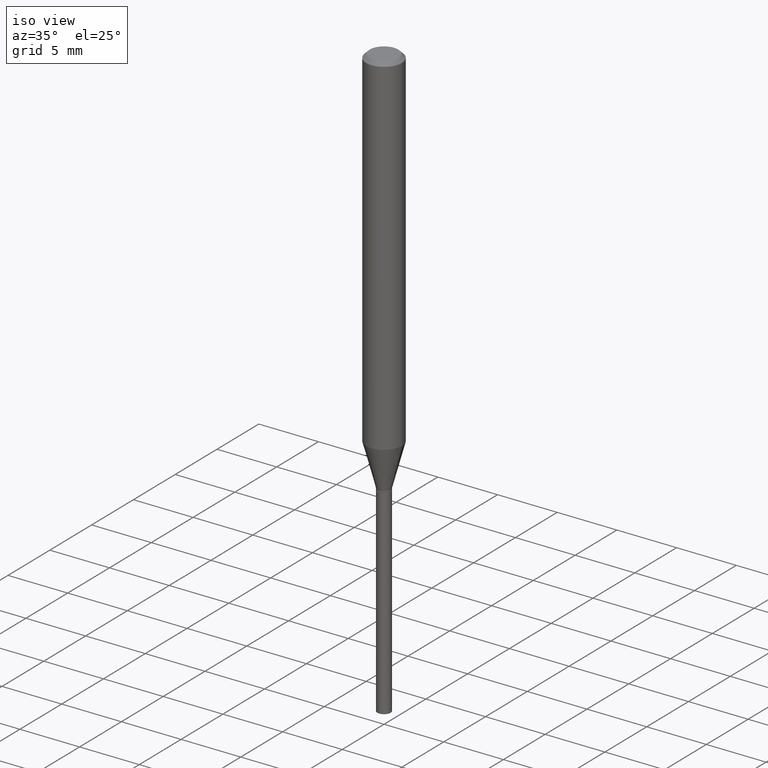
[diagram: clean part render]
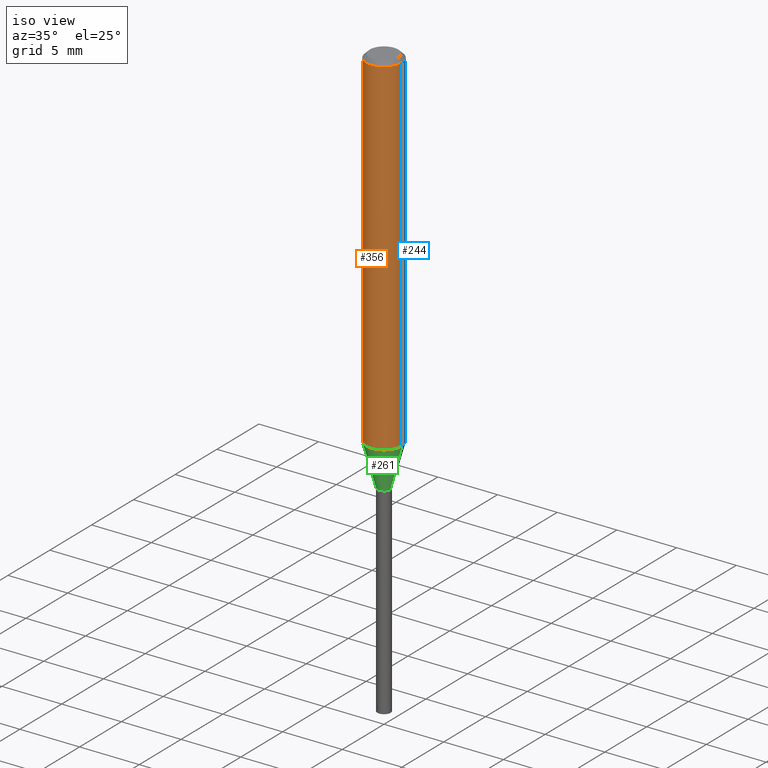
[diagram: same view with three faces highlighted in distinct colors, each labeled with its STEP entity id]
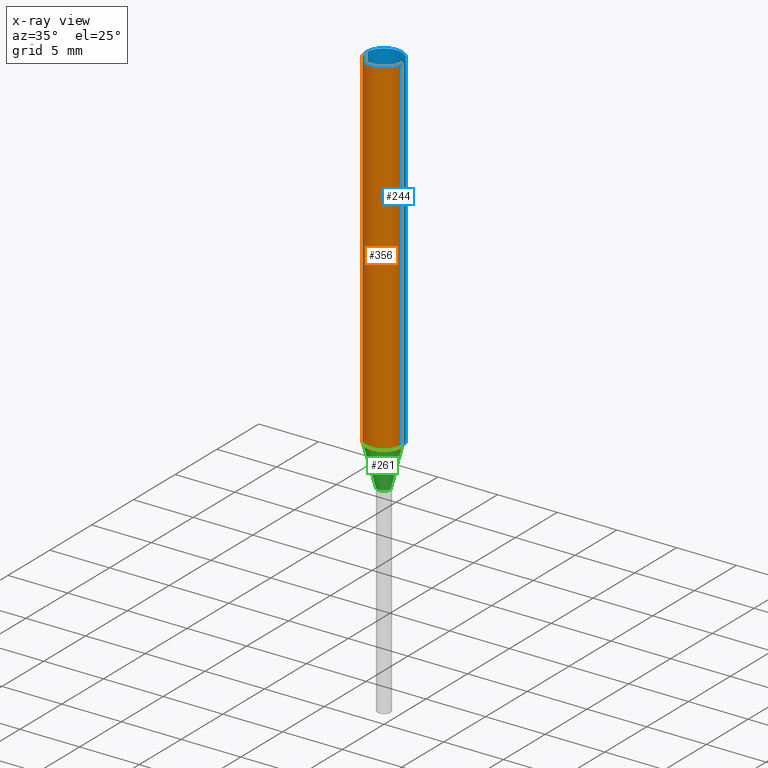
[diagram: x-ray of the same camera — body ghosted, the three highlighted faces saturated]
A machine part, iso view with three faces highlighted in distinct colors.
The next image is the same camera in x-ray (body ghosted, the three faces saturated) — at least one of them is partly hidden behind the body in this view.
Their STEP definitions:

[orange] entity #356 — the highlighted cylindrical surface (edge-blend (fillet) strip) has radius 1.4999 mm, axis along (-0, 0, 1).
#29 = CYLINDRICAL_SURFACE ( 'NONE', #385, 0.05905000000000008159 ) ;
#61 = CARTESIAN_POINT ( 'NONE',  ( 2.821144902804128605E-29, -4.027847240332933093E-15, -1.153621299796923516 ) ) ;
#70 = FACE_OUTER_BOUND ( 'NONE', #343, .T. ) ;
#87 = DIRECTION ( 'NONE',  ( -2.445468806185136597E-29, 3.491481338843145583E-15, 1.000000000000000000 ) ) ;
#94 = AXIS2_PLACEMENT_3D ( 'NONE', #61, #472, #101 ) ;
#98 = CARTESIAN_POINT ( 'NONE',  ( 0.05905000000000008159, -4.123439461173746736E-16, 2.879382386107504424E-30 ) ) ;
#101 = DIRECTION ( 'NONE',  ( 1.000000000000000000, -6.982962677686271444E-15, 0.000000000000000000 ) ) ;
#154 = AXIS2_PLACEMENT_3D ( 'NONE', #272, #87, #236 ) ;
#156 = VERTEX_POINT ( 'NONE', #201 ) ;
#184 = VECTOR ( 'NONE', #404, 39.37007874015748143 ) ;
#197 = ORIENTED_EDGE ( 'NONE', *, *, #279, .T. ) ;
#201 = CARTESIAN_POINT ( 'NONE',  ( 0.05905000000000000526, -4.535783407291119586E-16, -0.01181000000000007565 ) ) ;
#211 = EDGE_CURVE ( 'NONE', #267, #419, #387, .T. ) ;
#236 = DIRECTION ( 'NONE',  ( 1.000000000000000000, -6.982962677686268288E-15, 0.000000000000000000 ) ) ;
#248 = DIRECTION ( 'NONE',  ( 1.000000000000000000, -6.982962677686267499E-15, 4.876176775795936353E-29 ) ) ;
#257 = VECTOR ( 'NONE', #463, 39.37007874015748143 ) ;
#267 = VERTEX_POINT ( 'NONE', #439 ) ;
#272 = CARTESIAN_POINT ( 'NONE',  ( 2.888098660104664642E-31, -4.123439461173780879E-17, -0.01181000000000007565 ) ) ;
#279 = EDGE_CURVE ( 'NONE', #267, #370, #306, .T. ) ;
#282 = CARTESIAN_POINT ( 'NONE',  ( 0.05905000000000015098, -4.440191186450307224E-15, -1.153621299796923516 ) ) ;
#285 = CARTESIAN_POINT ( 'NONE',  ( 0.000000000000000000, 0.000000000000000000, 0.000000000000000000 ) ) ;
#304 = EDGE_CURVE ( 'NONE', #370, #156, #398, .T. ) ;
#306 = CIRCLE ( 'NONE', #94, 0.05905000000000015098 ) ;
#307 = ORIENTED_EDGE ( 'NONE', *, *, #304, .T. ) ;
#309 = ORIENTED_EDGE ( 'NONE', *, *, #401, .F. ) ;
#333 = ORIENTED_EDGE ( 'NONE', *, *, #211, .F. ) ;
#343 = EDGE_LOOP ( 'NONE', ( #333, #197, #307, #309 ) ) ;
#356 = ADVANCED_FACE ( 'NONE', ( #70 ), #29, .T. ) ;
#359 = CARTESIAN_POINT ( 'NONE',  ( -0.05905000000000000526, -1.614965332005994340E-15, -0.01181000000000007565 ) ) ;
#369 = CIRCLE ( 'NONE', #154, 0.05905000000000000526 ) ;
#370 = VERTEX_POINT ( 'NONE', #282 ) ;
#385 = AXIS2_PLACEMENT_3D ( 'NONE', #285, #435, #248 ) ;
#387 = LINE ( 'NONE', #420, #257 ) ;
#398 = LINE ( 'NONE', #98, #184 ) ;
#401 = EDGE_CURVE ( 'NONE', #419, #156, #369, .T. ) ;
#404 = DIRECTION ( 'NONE',  ( -2.445468806185136877E-29, 3.491481338843145188E-15, 1.000000000000000000 ) ) ;
#419 = VERTEX_POINT ( 'NONE', #359 ) ;
#420 = CARTESIAN_POINT ( 'NONE',  ( -0.05905000000000008159, 4.195754854663397395E-16, -2.904631170795525745E-30 ) ) ;
#435 = DIRECTION ( 'NONE',  ( -2.445468806185136597E-29, 3.491481338843145583E-15, 1.000000000000000000 ) ) ;
#439 = CARTESIAN_POINT ( 'NONE',  ( -0.05905000000000015098, -3.608271754866592022E-15, -1.153621299796923516 ) ) ;
#463 = DIRECTION ( 'NONE',  ( -2.445468806185136877E-29, 3.491481338843145188E-15, 1.000000000000000000 ) ) ;
#472 = DIRECTION ( 'NONE',  ( -2.445468806185136597E-29, 3.491481338843145583E-15, 1.000000000000000000 ) ) ;

[blue] entity #244 — the highlighted cylindrical surface (edge-blend (fillet) strip) has radius 1.4999 mm, axis along (-0, 0, 1).
#21 = DIRECTION ( 'NONE',  ( -2.445468806185136597E-29, 3.491481338843145583E-15, 1.000000000000000000 ) ) ;
#46 = FACE_OUTER_BOUND ( 'NONE', #314, .T. ) ;
#55 = DIRECTION ( 'NONE',  ( -2.445468806185136597E-29, 3.491481338843145583E-15, 1.000000000000000000 ) ) ;
#86 = ORIENTED_EDGE ( 'NONE', *, *, #304, .F. ) ;
#92 = DIRECTION ( 'NONE',  ( 1.000000000000000000, -6.982962677686271444E-15, 0.000000000000000000 ) ) ;
#98 = CARTESIAN_POINT ( 'NONE',  ( 0.05905000000000008159, -4.123439461173746736E-16, 2.879382386107504424E-30 ) ) ;
#119 = ORIENTED_EDGE ( 'NONE', *, *, #211, .T. ) ;
#139 = EDGE_CURVE ( 'NONE', #370, #267, #473, .T. ) ;
#156 = VERTEX_POINT ( 'NONE', #201 ) ;
#159 = ORIENTED_EDGE ( 'NONE', *, *, #139, .T. ) ;
#184 = VECTOR ( 'NONE', #404, 39.37007874015748143 ) ;
#198 = CYLINDRICAL_SURFACE ( 'NONE', #362, 0.05905000000000008159 ) ;
#201 = CARTESIAN_POINT ( 'NONE',  ( 0.05905000000000000526, -4.535783407291119586E-16, -0.01181000000000007565 ) ) ;
#205 = DIRECTION ( 'NONE',  ( 1.000000000000000000, -6.982962677686268288E-15, 0.000000000000000000 ) ) ;
#210 = CIRCLE ( 'NONE', #358, 0.05905000000000000526 ) ;
#211 = EDGE_CURVE ( 'NONE', #267, #419, #387, .T. ) ;
#218 = DIRECTION ( 'NONE',  ( 1.000000000000000000, -6.982962677686267499E-15, 4.876176775795936353E-29 ) ) ;
#244 = ADVANCED_FACE ( 'NONE', ( #46 ), #198, .T. ) ;
#246 = DIRECTION ( 'NONE',  ( -2.445468806185136597E-29, 3.491481338843145583E-15, 1.000000000000000000 ) ) ;
#257 = VECTOR ( 'NONE', #463, 39.37007874015748143 ) ;
#267 = VERTEX_POINT ( 'NONE', #439 ) ;
#274 = ORIENTED_EDGE ( 'NONE', *, *, #448, .F. ) ;
#282 = CARTESIAN_POINT ( 'NONE',  ( 0.05905000000000015098, -4.440191186450307224E-15, -1.153621299796923516 ) ) ;
#304 = EDGE_CURVE ( 'NONE', #370, #156, #398, .T. ) ;
#314 = EDGE_LOOP ( 'NONE', ( #159, #119, #274, #86 ) ) ;
#345 = AXIS2_PLACEMENT_3D ( 'NONE', #355, #246, #92 ) ;
#355 = CARTESIAN_POINT ( 'NONE',  ( 2.821144902804128605E-29, -4.027847240332933093E-15, -1.153621299796923516 ) ) ;
#358 = AXIS2_PLACEMENT_3D ( 'NONE', #430, #55, #205 ) ;
#359 = CARTESIAN_POINT ( 'NONE',  ( -0.05905000000000000526, -1.614965332005994340E-15, -0.01181000000000007565 ) ) ;
#362 = AXIS2_PLACEMENT_3D ( 'NONE', #364, #21, #218 ) ;
#364 = CARTESIAN_POINT ( 'NONE',  ( 0.000000000000000000, 0.000000000000000000, 0.000000000000000000 ) ) ;
#370 = VERTEX_POINT ( 'NONE', #282 ) ;
#387 = LINE ( 'NONE', #420, #257 ) ;
#398 = LINE ( 'NONE', #98, #184 ) ;
#404 = DIRECTION ( 'NONE',  ( -2.445468806185136877E-29, 3.491481338843145188E-15, 1.000000000000000000 ) ) ;
#419 = VERTEX_POINT ( 'NONE', #359 ) ;
#420 = CARTESIAN_POINT ( 'NONE',  ( -0.05905000000000008159, 4.195754854663397395E-16, -2.904631170795525745E-30 ) ) ;
#430 = CARTESIAN_POINT ( 'NONE',  ( 2.888098660104664642E-31, -4.123439461173780879E-17, -0.01181000000000007565 ) ) ;
#439 = CARTESIAN_POINT ( 'NONE',  ( -0.05905000000000015098, -3.608271754866592022E-15, -1.153621299796923516 ) ) ;
#448 = EDGE_CURVE ( 'NONE', #156, #419, #210, .T. ) ;
#463 = DIRECTION ( 'NONE',  ( -2.445468806185136877E-29, 3.491481338843145188E-15, 1.000000000000000000 ) ) ;
#473 = CIRCLE ( 'NONE', #345, 0.05905000000000015098 ) ;

[green] entity #261 — the highlighted conical surface has half-angle 15 deg.
#5 = ORIENTED_EDGE ( 'NONE', *, *, #33, .F. ) ;
#22 = CARTESIAN_POINT ( 'NONE',  ( 3.162480260158618503E-29, -4.515183667391955113E-15, -1.293199999999999683 ) ) ;
#33 = EDGE_CURVE ( 'NONE', #350, #267, #410, .T. ) ;
#51 = LINE ( 'NONE', #276, #106 ) ;
#59 = AXIS2_PLACEMENT_3D ( 'NONE', #181, #328, #102 ) ;
#61 = CARTESIAN_POINT ( 'NONE',  ( 2.821144902804128605E-29, -4.027847240332933093E-15, -1.153621299796923516 ) ) ;
#68 = EDGE_CURVE ( 'NONE', #350, #311, #299, .T. ) ;
#80 = ORIENTED_EDGE ( 'NONE', *, *, #279, .F. ) ;
#81 = DIRECTION ( 'NONE',  ( 1.000000000000000000, -6.982962677686260400E-15, 0.000000000000000000 ) ) ;
#94 = AXIS2_PLACEMENT_3D ( 'NONE', #61, #472, #101 ) ;
#101 = DIRECTION ( 'NONE',  ( 1.000000000000000000, -6.982962677686271444E-15, 0.000000000000000000 ) ) ;
#102 = DIRECTION ( 'NONE',  ( 1.000000000000000000, -6.982962677686260400E-15, 0.000000000000000000 ) ) ;
#106 = VECTOR ( 'NONE', #204, 39.37007874015747433 ) ;
#175 = FACE_OUTER_BOUND ( 'NONE', #488, .T. ) ;
#177 = DIRECTION ( 'NONE',  ( -2.445468806185136597E-29, 3.491481338843145583E-15, 1.000000000000000000 ) ) ;
#181 = CARTESIAN_POINT ( 'NONE',  ( 3.162480260158618503E-29, -4.515183667391955113E-15, -1.293199999999999683 ) ) ;
#204 = DIRECTION ( 'NONE',  ( 0.2588190451025213501, 1.565188264969621968E-15, 0.9659258262890682012 ) ) ;
#213 = ORIENTED_EDGE ( 'NONE', *, *, #68, .T. ) ;
#224 = CARTESIAN_POINT ( 'NONE',  ( -0.02165000000000002339, -4.361351165099893010E-15, -1.293199999999999683 ) ) ;
#225 = EDGE_CURVE ( 'NONE', #311, #370, #51, .T. ) ;
#240 = AXIS2_PLACEMENT_3D ( 'NONE', #22, #177, #81 ) ;
#261 = ADVANCED_FACE ( 'NONE', ( #175 ), #337, .T. ) ;
#267 = VERTEX_POINT ( 'NONE', #439 ) ;
#269 = DIRECTION ( 'NONE',  ( -0.2588190451025213501, 5.211531920934551042E-15, 0.9659258262890682012 ) ) ;
#276 = CARTESIAN_POINT ( 'NONE',  ( 0.02165000000000002339, -4.666364809363862844E-15, -1.293199999999999683 ) ) ;
#279 = EDGE_CURVE ( 'NONE', #267, #370, #306, .T. ) ;
#282 = CARTESIAN_POINT ( 'NONE',  ( 0.05905000000000015098, -4.440191186450307224E-15, -1.153621299796923516 ) ) ;
#299 = CIRCLE ( 'NONE', #240, 0.02165000000000002339 ) ;
#306 = CIRCLE ( 'NONE', #94, 0.05905000000000015098 ) ;
#311 = VERTEX_POINT ( 'NONE', #368 ) ;
#313 = VECTOR ( 'NONE', #269, 39.37007874015747433 ) ;
#328 = DIRECTION ( 'NONE',  ( -2.445468806185136597E-29, 3.491481338843145583E-15, 1.000000000000000000 ) ) ;
#337 = CONICAL_SURFACE ( 'NONE', #59, 0.02165000000000002339, 0.2617993877991500740 ) ;
#350 = VERTEX_POINT ( 'NONE', #478 ) ;
#368 = CARTESIAN_POINT ( 'NONE',  ( 0.02165000000000002339, -4.666364809363862844E-15, -1.293199999999999683 ) ) ;
#370 = VERTEX_POINT ( 'NONE', #282 ) ;
#386 = ORIENTED_EDGE ( 'NONE', *, *, #225, .T. ) ;
#410 = LINE ( 'NONE', #224, #313 ) ;
#439 = CARTESIAN_POINT ( 'NONE',  ( -0.05905000000000015098, -3.608271754866592022E-15, -1.153621299796923516 ) ) ;
#472 = DIRECTION ( 'NONE',  ( -2.445468806185136597E-29, 3.491481338843145583E-15, 1.000000000000000000 ) ) ;
#478 = CARTESIAN_POINT ( 'NONE',  ( -0.02165000000000002339, -4.371825609116423609E-15, -1.293199999999999683 ) ) ;
#488 = EDGE_LOOP ( 'NONE', ( #5, #213, #386, #80 ) ) ;